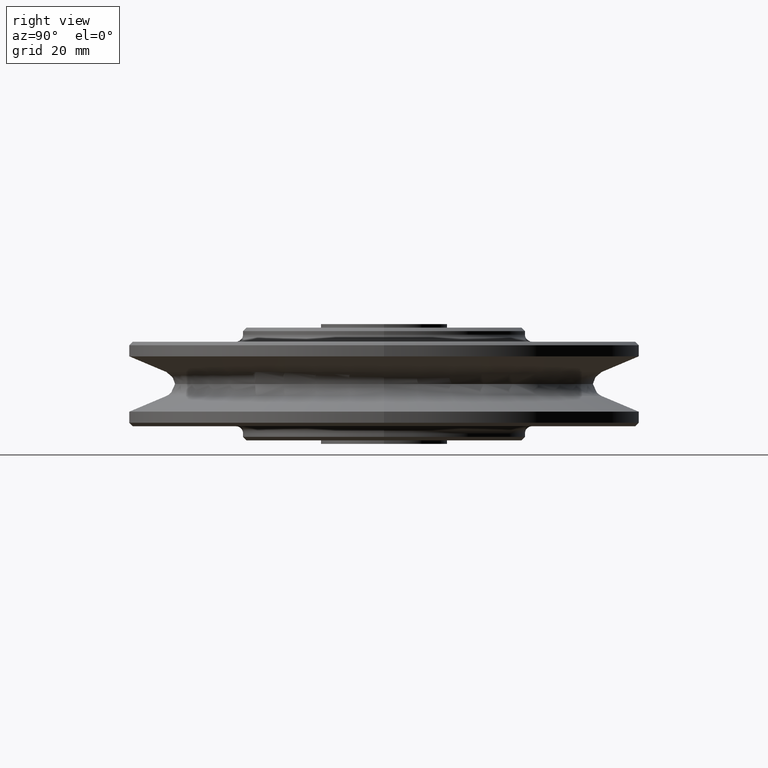
[diagram: clean part render]
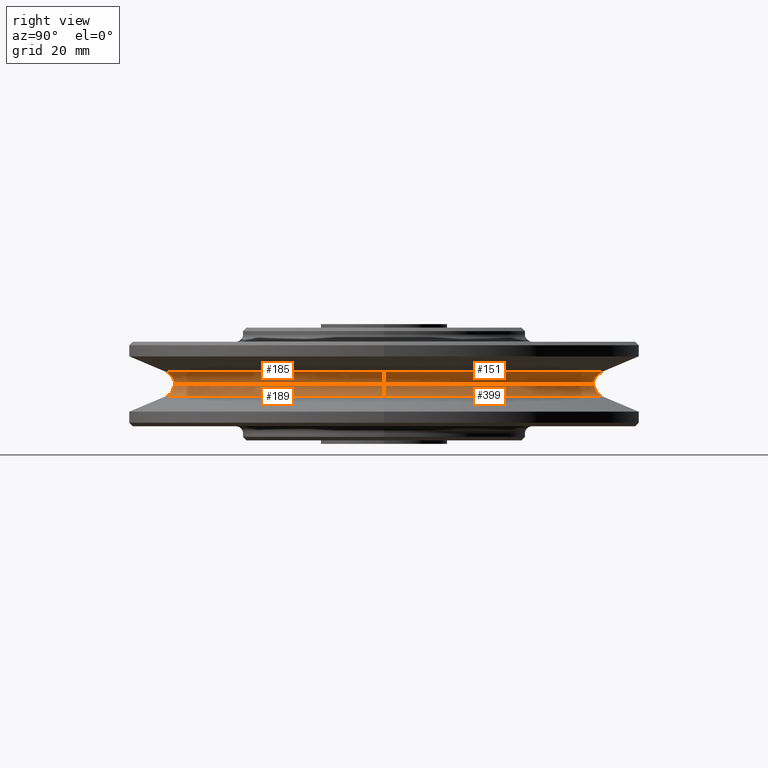
[diagram: same view with one multi-face feature highlighted, each face labeled with its STEP entity id]
A machine part, right view. The highlighted faces form ONE feature: a constant-radius fillet chain: 4 tangent blend faces with common blend radius 3.7 mm. The faces share edges in the B-rep.
Their STEP definitions:
[1] entity #185 (Torus):
#185=ADVANCED_FACE('',(#472),#473,.F.);
#472=FACE_OUTER_BOUND('',#882,.T.);
#473=TOROIDAL_SURFACE('',#883,63.1999997816,3.6999997816);
#882=EDGE_LOOP('',(#1371,#1372,#1373,#1374));
#883=AXIS2_PLACEMENT_3D('',#1375,#1376,#1377);
#1371=ORIENTED_EDGE('',*,*,#2649,.F.);
#1372=ORIENTED_EDGE('',*,*,#2567,.F.);
#1373=ORIENTED_EDGE('',*,*,#2650,.F.);
#1374=ORIENTED_EDGE('',*,*,#2565,.F.);
#1375=CARTESIAN_POINT('',(0.0,0.0,0.0));
#1376=DIRECTION('',(0.0,0.0,1.0));
#1377=DIRECTION('',(1.0,0.0,0.0));
#2565=EDGE_CURVE('',#3103,#3106,#3107,.T.);
#2567=EDGE_CURVE('',#3108,#3104,#3110,.T.);
#2649=EDGE_CURVE('',#3104,#3103,#3256,.T.);
#2650=EDGE_CURVE('',#3106,#3108,#3257,.T.);
#3103=VERTEX_POINT('',#3920);
#3104=VERTEX_POINT('',#3921);
#3106=VERTEX_POINT('',#3923);
#3107=CIRCLE('',#3924,3.6999997816);
#3108=VERTEX_POINT('',#3925);
#3110=CIRCLE('',#3927,3.6999997816);
#3256=CIRCLE('',#4777,59.5);
#3257=CIRCLE('',#4778,61.784071);
#3920=CARTESIAN_POINT('',(-59.5,6.96947826179476E-015,4.53119288938235E-016));
#3921=CARTESIAN_POINT('',(59.5,-6.96947826179476E-015,4.53119288938235E-016));
#3923=CARTESIAN_POINT('',(-61.784071,7.56636647884428E-015,3.418354));
#3924=AXIS2_PLACEMENT_3D('',#7841,#7842,#7843);
#3925=CARTESIAN_POINT('',(61.784071,0.0,3.418354));
#3927=AXIS2_PLACEMENT_3D('',#7847,#7848,#7849);
#4777=AXIS2_PLACEMENT_3D('',#7946,#7947,#7948);
#4778=AXIS2_PLACEMENT_3D('',#7949,#7950,#7951);
#7841=CARTESIAN_POINT('',(-63.1999997816,7.73976774386498E-015,0.0));
#7842=DIRECTION('',(-1.22464679914735E-016,-1.0,0.0));
#7843=DIRECTION('',(-1.0,1.22464679914735E-016,-0.0));
#7847=CARTESIAN_POINT('',(63.1999997816,-7.73976774386498E-015,0.0));
#7848=DIRECTION('',(-1.22464679914735E-016,-1.0,0.0));
#7849=DIRECTION('',(1.0,-1.22464679914735E-016,0.0));
#7946=CARTESIAN_POINT('',(0.0,0.0,4.53119288938235E-016));
#7947=DIRECTION('',(-0.0,0.0,-1.0));
#7948=DIRECTION('',(-1.0,0.0,0.0));
#7949=CARTESIAN_POINT('',(0.0,0.0,3.418354));
#7950=DIRECTION('',(0.0,0.0,1.0));
#7951=DIRECTION('',(1.0,0.0,0.0));
[2] entity #189 (Torus):
#189=ADVANCED_FACE('',(#478),#479,.F.);
#478=FACE_OUTER_BOUND('',#888,.T.);
#479=TOROIDAL_SURFACE('',#889,63.1999997816,3.6999997816);
#888=EDGE_LOOP('',(#1387,#1388,#1389,#1390));
#889=AXIS2_PLACEMENT_3D('',#1391,#1392,#1393);
#1387=ORIENTED_EDGE('',*,*,#2649,.T.);
#1388=ORIENTED_EDGE('',*,*,#2656,.F.);
#1389=ORIENTED_EDGE('',*,*,#2657,.T.);
#1390=ORIENTED_EDGE('',*,*,#2658,.F.);
#1391=CARTESIAN_POINT('',(0.0,0.0,0.0));
#1392=DIRECTION('',(0.0,0.0,1.0));
#1393=DIRECTION('',(1.0,0.0,0.0));
#2649=EDGE_CURVE('',#3104,#3103,#3256,.T.);
#2656=EDGE_CURVE('',#3265,#3103,#3266,.T.);
#2657=EDGE_CURVE('',#3265,#3267,#3268,.T.);
#2658=EDGE_CURVE('',#3104,#3267,#3269,.T.);
#3103=VERTEX_POINT('',#3920);
#3104=VERTEX_POINT('',#3921);
#3256=CIRCLE('',#4777,59.5);
#3265=VERTEX_POINT('',#4788);
#3266=CIRCLE('',#4789,3.6999997816);
#3267=VERTEX_POINT('',#4790);
#3268=CIRCLE('',#4791,61.784071);
#3269=CIRCLE('',#4792,3.6999997816);
#3920=CARTESIAN_POINT('',(-59.5,6.96947826179476E-015,4.53119288938235E-016));
#3921=CARTESIAN_POINT('',(59.5,-6.96947826179476E-015,4.53119288938235E-016));
#4777=AXIS2_PLACEMENT_3D('',#7946,#7947,#7948);
#4788=CARTESIAN_POINT('',(-61.784071,7.56636647884428E-015,-3.418354));
#4789=AXIS2_PLACEMENT_3D('',#7957,#7958,#7959);
#4790=CARTESIAN_POINT('',(61.784071,0.0,-3.418354));
#4791=AXIS2_PLACEMENT_3D('',#7960,#7961,#7962);
#4792=AXIS2_PLACEMENT_3D('',#7963,#7964,#7965);
#7946=CARTESIAN_POINT('',(0.0,0.0,4.53119288938235E-016));
#7947=DIRECTION('',(-0.0,0.0,-1.0));
#7948=DIRECTION('',(-1.0,0.0,0.0));
#7957=CARTESIAN_POINT('',(-63.1999997816,7.73976774386498E-015,0.0));
#7958=DIRECTION('',(-1.22464679914735E-016,-1.0,0.0));
#7959=DIRECTION('',(-1.0,1.22464679914735E-016,-0.0));
#7960=CARTESIAN_POINT('',(0.0,0.0,-3.418354));
#7961=DIRECTION('',(0.0,0.0,1.0));
#7962=DIRECTION('',(1.0,0.0,0.0));
#7963=CARTESIAN_POINT('',(63.1999997816,-7.73976774386498E-015,0.0));
#7964=DIRECTION('',(-1.22464679914735E-016,-1.0,0.0));
#7965=DIRECTION('',(1.0,-1.22464679914735E-016,0.0));
[3] entity #399 (Torus):
#399=ADVANCED_FACE('',(#817),#818,.F.);
#817=FACE_OUTER_BOUND('',#1227,.T.);
#818=TOROIDAL_SURFACE('',#1228,63.1999997816,3.6999997816);
#1227=EDGE_LOOP('',(#2547,#2548,#2549,#2550));
#1228=AXIS2_PLACEMENT_3D('',#2551,#2552,#2553);
#2547=ORIENTED_EDGE('',*,*,#2564,.T.);
#2548=ORIENTED_EDGE('',*,*,#2658,.T.);
#2549=ORIENTED_EDGE('',*,*,#2663,.T.);
#2550=ORIENTED_EDGE('',*,*,#2656,.T.);
#2551=CARTESIAN_POINT('',(0.0,0.0,0.0));
#2552=DIRECTION('',(0.0,0.0,1.0));
#2553=DIRECTION('',(1.0,0.0,0.0));
#2564=EDGE_CURVE('',#3103,#3104,#3105,.T.);
#2656=EDGE_CURVE('',#3265,#3103,#3266,.T.);
#2658=EDGE_CURVE('',#3104,#3267,#3269,.T.);
#2663=EDGE_CURVE('',#3267,#3265,#3276,.T.);
#3103=VERTEX_POINT('',#3920);
#3104=VERTEX_POINT('',#3921);
#3105=CIRCLE('',#3922,59.5);
#3265=VERTEX_POINT('',#4788);
#3266=CIRCLE('',#4789,3.6999997816);
#3267=VERTEX_POINT('',#4790);
#3269=CIRCLE('',#4792,3.6999997816);
#3276=CIRCLE('',#4801,61.784071);
#3920=CARTESIAN_POINT('',(-59.5,6.96947826179476E-015,4.53119288938235E-016));
#3921=CARTESIAN_POINT('',(59.5,-6.96947826179476E-015,4.53119288938235E-016));
#3922=AXIS2_PLACEMENT_3D('',#7838,#7839,#7840);
#4788=CARTESIAN_POINT('',(-61.784071,7.56636647884428E-015,-3.418354));
#4789=AXIS2_PLACEMENT_3D('',#7957,#7958,#7959);
#4790=CARTESIAN_POINT('',(61.784071,0.0,-3.418354));
#4792=AXIS2_PLACEMENT_3D('',#7963,#7964,#7965);
#4801=AXIS2_PLACEMENT_3D('',#7971,#7972,#7973);
#7838=CARTESIAN_POINT('',(0.0,0.0,4.53119288938235E-016));
#7839=DIRECTION('',(-0.0,0.0,-1.0));
#7840=DIRECTION('',(-1.0,0.0,0.0));
#7957=CARTESIAN_POINT('',(-63.1999997816,7.73976774386498E-015,0.0));
#7958=DIRECTION('',(-1.22464679914735E-016,-1.0,0.0));
#7959=DIRECTION('',(-1.0,1.22464679914735E-016,-0.0));
#7963=CARTESIAN_POINT('',(63.1999997816,-7.73976774386498E-015,0.0));
#7964=DIRECTION('',(-1.22464679914735E-016,-1.0,0.0));
#7965=DIRECTION('',(1.0,-1.22464679914735E-016,0.0));
#7971=CARTESIAN_POINT('',(0.0,0.0,-3.418354));
#7972=DIRECTION('',(0.0,0.0,1.0));
#7973=DIRECTION('',(1.0,0.0,0.0));
[4] entity #151 (Torus):
#151=ADVANCED_FACE('',(#421),#422,.F.);
#421=FACE_OUTER_BOUND('',#831,.T.);
#422=TOROIDAL_SURFACE('',#832,63.1999997816,3.6999997816);
#831=EDGE_LOOP('',(#1235,#1236,#1237,#1238));
#832=AXIS2_PLACEMENT_3D('',#1239,#1240,#1241);
#1235=ORIENTED_EDGE('',*,*,#2564,.F.);
#1236=ORIENTED_EDGE('',*,*,#2565,.T.);
#1237=ORIENTED_EDGE('',*,*,#2566,.F.);
#1238=ORIENTED_EDGE('',*,*,#2567,.T.);
#1239=CARTESIAN_POINT('',(0.0,0.0,0.0));
#1240=DIRECTION('',(0.0,0.0,1.0));
#1241=DIRECTION('',(1.0,0.0,0.0));
#2564=EDGE_CURVE('',#3103,#3104,#3105,.T.);
#2565=EDGE_CURVE('',#3103,#3106,#3107,.T.);
#2566=EDGE_CURVE('',#3108,#3106,#3109,.T.);
#2567=EDGE_CURVE('',#3108,#3104,#3110,.T.);
#3103=VERTEX_POINT('',#3920);
#3104=VERTEX_POINT('',#3921);
#3105=CIRCLE('',#3922,59.5);
#3106=VERTEX_POINT('',#3923);
#3107=CIRCLE('',#3924,3.6999997816);
#3108=VERTEX_POINT('',#3925);
#3109=CIRCLE('',#3926,61.784071);
#3110=CIRCLE('',#3927,3.6999997816);
#3920=CARTESIAN_POINT('',(-59.5,6.96947826179476E-015,4.53119288938235E-016));
#3921=CARTESIAN_POINT('',(59.5,-6.96947826179476E-015,4.53119288938235E-016));
#3922=AXIS2_PLACEMENT_3D('',#7838,#7839,#7840);
#3923=CARTESIAN_POINT('',(-61.784071,7.56636647884428E-015,3.418354));
#3924=AXIS2_PLACEMENT_3D('',#7841,#7842,#7843);
#3925=CARTESIAN_POINT('',(61.784071,0.0,3.418354));
#3926=AXIS2_PLACEMENT_3D('',#7844,#7845,#7846);
#3927=AXIS2_PLACEMENT_3D('',#7847,#7848,#7849);
#7838=CARTESIAN_POINT('',(0.0,0.0,4.53119288938235E-016));
#7839=DIRECTION('',(-0.0,0.0,-1.0));
#7840=DIRECTION('',(-1.0,0.0,0.0));
#7841=CARTESIAN_POINT('',(-63.1999997816,7.73976774386498E-015,0.0));
#7842=DIRECTION('',(-1.22464679914735E-016,-1.0,0.0));
#7843=DIRECTION('',(-1.0,1.22464679914735E-016,-0.0));
#7844=CARTESIAN_POINT('',(0.0,0.0,3.418354));
#7845=DIRECTION('',(0.0,0.0,1.0));
#7846=DIRECTION('',(1.0,0.0,0.0));
#7847=CARTESIAN_POINT('',(63.1999997816,-7.73976774386498E-015,0.0));
#7848=DIRECTION('',(-1.22464679914735E-016,-1.0,0.0));
#7849=DIRECTION('',(1.0,-1.22464679914735E-016,0.0));